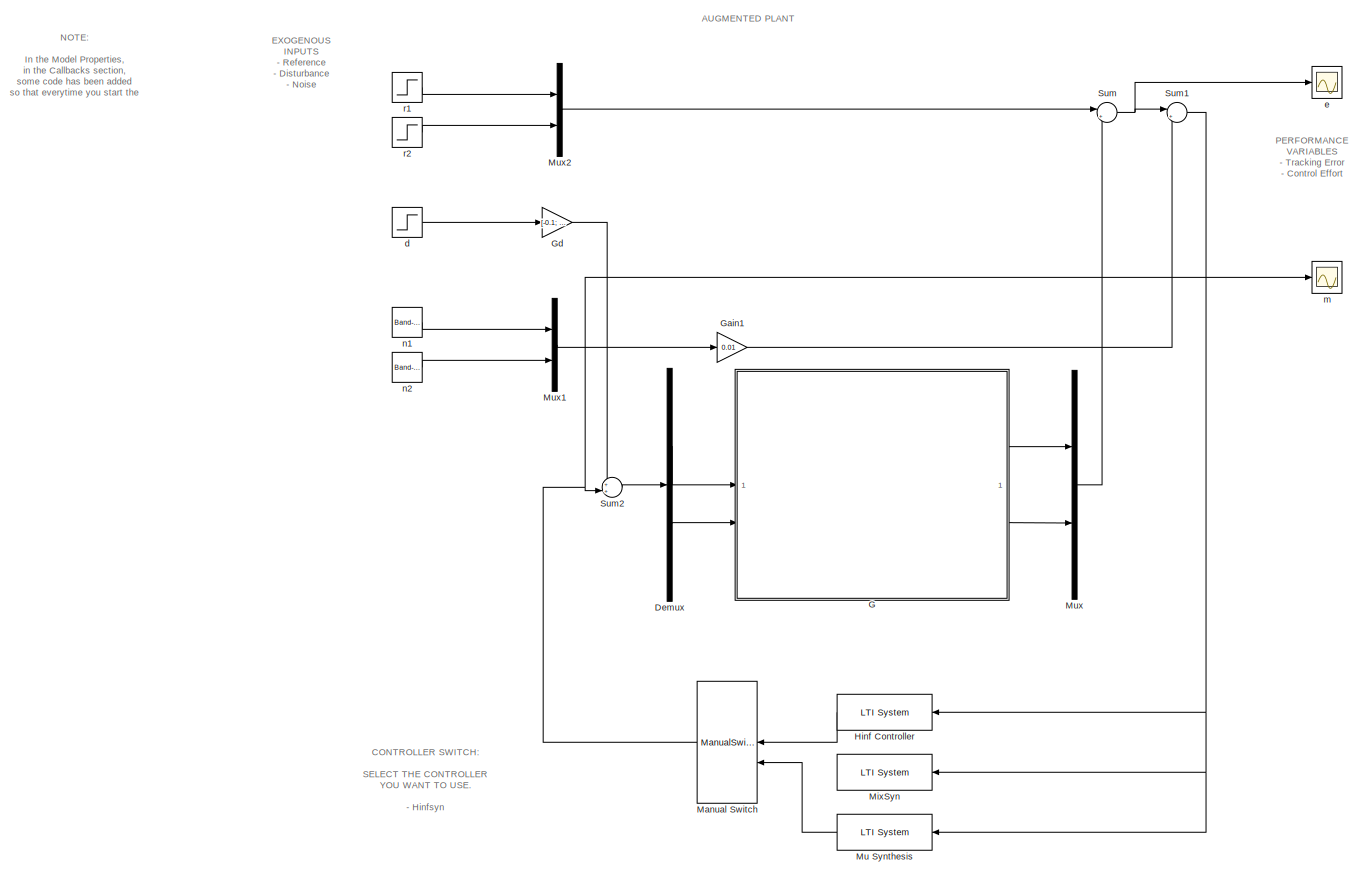
[diagram: root canvas - part 1/1, most of the canvas]
MODEL slx_6a903f823dc0
KIND model
CONFIG AbsTol = auto
CONFIG EnableMultiTasking = off
CONFIG FixedStep = auto
CONFIG InitFcn = if ~ evalin('base', 'exist(''C1_Hinf'', ''var'')')\n    C1_Hinf = load('C1_hinf').C1;\nend\n\nif ~ evalin('base', 'exist(''C2_Hinf'', ''var'')')\n    C2_Hinf = load('C2_hinf').C2;\nend\n\nif ~ evalin('base', 'exist(''C_Musyn'', ''var'')')\n    C_Musyn = load('C_musyn.mat').C_mu;\nend\n
CONFIG MaxStep = auto
CONFIG MinStep = auto
CONFIG RelTol = 1e-3
CONFIG SampleTimeConstraint = Unconstrained
CONFIG SolverName = VariableStepAuto
CONFIG StartTime = 0.0
CONFIG StopTime = 10.0
BLOCK [Demux] Demux
  Outputs = 2
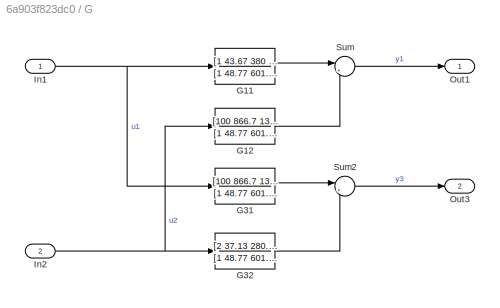
BLOCK [SubSystem] G
BLOCK [TransferFcn] G/G11
  Denominator = [1 48.77 601.1 2931 6251 5073 6667]
  Numerator = [1 43.67 380 908 1333]
BLOCK [TransferFcn] G/G12
  Denominator = [1 48.77 601.1 2931 6251 5073 6667]
  Numerator = [100 866.7 1333]
BLOCK [TransferFcn] G/G31
  Denominator = [1 48.77 601.1 2931 6251 5073 6667]
  Numerator = [100 866.7 1333]
BLOCK [TransferFcn] G/G32
  Denominator = [1 48.77 601.1 2931 6251 5073 6667]
  Numerator = [2 37.13 280.7 1019 2067]
BLOCK [Inport] G/In1
  IconDisplay = Signal name
BLOCK [Inport] G/In2
  IconDisplay = Signal name
  Port = 2
BLOCK [Outport] G/Out1
  IconDisplay = Signal name
BLOCK [Outport] G/Out3
  IconDisplay = Signal name
  Port = 2
BLOCK [Sum] G/Sum
  Inputs = |++
BLOCK [Sum] G/Sum2
  Inputs = |++
BLOCK [Gain] Gain1
  Gain = 0.01
BLOCK [Gain] Gd
  Gain = [-0.1; 0]
  Multiplication = Matrix(K*u)
BLOCK [Reference] Hinf Controller  REF=cstblocks/LTI System
  SourceBlock = cstblocks/LTI System
  SourceType = LTI Block
BLOCK [ManualSwitch] Manual Switch
  CurrentSetting = 0
BLOCK [Reference] MixSyn  REF=cstblocks/LTI System
  SourceBlock = cstblocks/LTI System
  SourceType = LTI Block
BLOCK [Reference] Mu Synthesis  REF=cstblocks/LTI System
  SourceBlock = cstblocks/LTI System
  SourceType = LTI Block
BLOCK [Mux] Mux
  DisplayOption = bar
  Inputs = 2
BLOCK [Mux] Mux1
  DisplayOption = bar
  Inputs = 2
BLOCK [Mux] Mux2
  DisplayOption = bar
  Inputs = 2
BLOCK [Sum] Sum
  Inputs = |+-
BLOCK [Sum] Sum1
  Inputs = |+-
BLOCK [Sum] Sum2
  Inputs = ++|
BLOCK [Step] d
  After = 0.1
  SampleTime = 0
  Time = 0
BLOCK [Scope] e
  Floating = off
  NumInputPorts = 1
  ScopeSpecificationString = Simulink.scopes.TimeScopeBlockCfg('CurrentConfiguration', extmgr.ConfigurationSet(extmgr.Configuration('Core','General UI',true),extmgr.Configuration('Core','Source UI',true),extmgr.Configuration('Sources','WiredSimulink',true),extmgr.Configuration('Visuals','Time Domain',true,'SerializedDisplays',{struct('MinYLimReal','-0.47443','MaxYLimReal','1.71938','YLabelReal','','MinYLimMag','0.00000','MaxY...<+1422ch>
BLOCK [Scope] m
  Floating = off
  NumInputPorts = 1
  ScopeSpecificationString = Simulink.scopes.TimeScopeBlockCfg('CurrentConfiguration', extmgr.ConfigurationSet(extmgr.Configuration('Core','General UI',true),extmgr.Configuration('Core','Source UI',true),extmgr.Configuration('Sources','WiredSimulink',true,'DataLoggingVariableName','ScopeData1'),extmgr.Configuration('Visuals','Time Domain',true,'SerializedDisplays',{struct('MinYLimReal','-10.84648','MaxYLimReal','19.38958','YL...<+1487ch>
BLOCK [Reference] n1  REF=simulink/Sources/Band-Limited
White Noise
  SourceBlock = simulink/Sources/Band-Limited\nWhite Noise
  SourceType = Band-Limited White Noise.
BLOCK [Reference] n2  REF=simulink/Sources/Band-Limited
White Noise
  SourceBlock = simulink/Sources/Band-Limited\nWhite Noise
  SourceType = Band-Limited White Noise.
BLOCK [Step] r1
  After = 0.5
  SampleTime = 0
  Time = 0
BLOCK [Step] r2
  After = 1.5
  SampleTime = 0
  Time = 0
ANNOTATION (root): EXOGENOUS INPUTS - Reference - Disturbance - Noise
ANNOTATION (root): PERFORMANCE VARIABLES - Tracking Error - Control Effort
ANNOTATION (root): AUGMENTED PLANT
ANNOTATION (root): CONTROLLER SWITCH: SELECT THE CONTROLLER YOU WANT TO USE. - Hinfsyn - Mixsyn - Mu synthesys
ANNOTATION (root): NOTE: In the Model Properties, in the Callbacks section, some code has been added so that everytime you start the simulation, the controllers get loaded in the workspace from the .mat files, but only if they're not already in the Workspace.
LINE Demux:1 -> G:1
LINE Demux:2 -> G:2
LINE G/G11:1 -> G/Sum:1
LINE G/G12:1 -> G/Sum:2
LINE G/G31:1 -> G/Sum2:1
LINE G/G32:1 -> G/Sum2:2
NET G/In1:1 -> G/G11:1, G/G31:1
NET G/In2:1 -> G/G12:1, G/G32:1
LINE G/Sum2:1 -> G/Out3:1
LINE G/Sum:1 -> G/Out1:1
LINE G:1 -> Mux:1
LINE G:2 -> Mux:2
LINE Gain1:1 -> Sum1:2
LINE Gd:1 -> Sum2:1
LINE Hinf Controller:1 -> Manual Switch:1
NET Manual Switch:1 -> Sum2:2, m:1
LINE Mu Synthesis:1 -> Manual Switch:2
LINE Mux1:1 -> Gain1:1
LINE Mux2:1 -> Sum:1
LINE Mux:1 -> Sum:2
NET Sum1:1 -> Hinf Controller:1, MixSyn:1, Mu Synthesis:1
LINE Sum2:1 -> Demux:1
NET Sum:1 -> Sum1:1, e:1
LINE d:1 -> Gd:1
LINE n1:1 -> Mux1:1
LINE n2:1 -> Mux1:2
LINE r1:1 -> Mux2:1
LINE r2:1 -> Mux2:2
note: NET lines group one-source signal fan-out (src -> all destinations, sorted); 1:1 wires keep LINE
